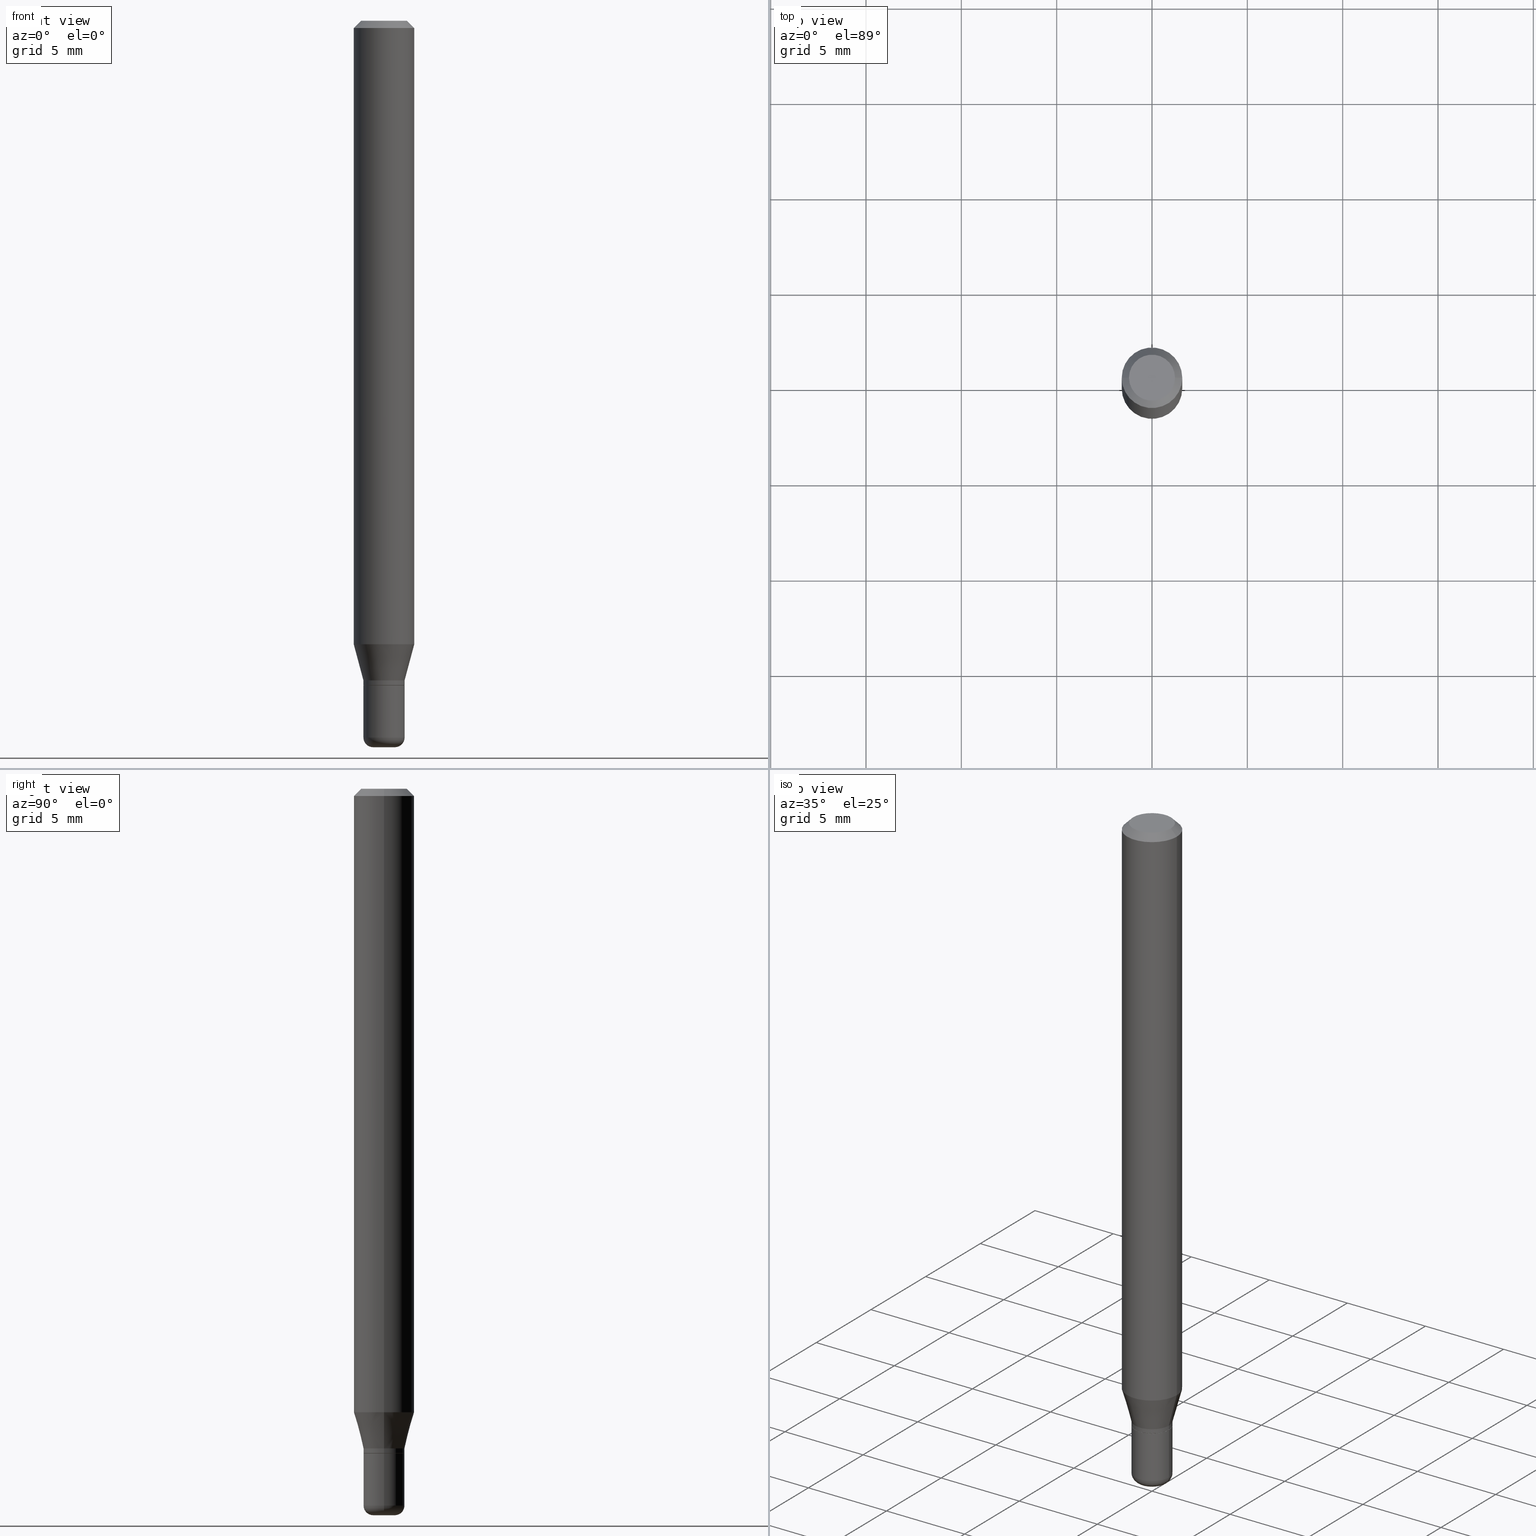
[diagram: canonical four-view strip — front | top / right | iso, engineering-drawing reading convention]
A machine part, canonical four-view strip (front | top / right | iso — engineering-drawing reading convention). The complete STEP part file that produces these views, byte-faithful:
ISO-10303-21;
HEADER;
FILE_DESCRIPTION (( 'STEP AP203' ),
    '1' );
FILE_NAME ('09058.STEP',
    '2024-02-29T21:41:58',
    ( '' ),
    ( '' ),
    'SwSTEP 2.0',
    'SolidWorks 2023',
    '' );
FILE_SCHEMA (( 'CONFIG_CONTROL_DESIGN' ));
ENDSEC;

DATA;
#1 = DIRECTION ( 'NONE',  ( -2.445468806185136597E-29, 3.491481338843145583E-15, 1.000000000000000000 ) ) ;
#2 = VECTOR ( 'NONE', #198, 39.37007874015748143 ) ;
#3 = ORIENTED_EDGE ( 'NONE', *, *, #28, .T. ) ;
#4 = DIRECTION ( 'NONE',  ( -2.445468806185136597E-29, 3.491481338843145583E-15, 1.000000000000000000 ) ) ;
#5 = EDGE_LOOP ( 'NONE', ( #34, #335 ) ) ;
#6 = DIRECTION ( 'NONE',  ( -2.445468806185136877E-29, 3.491481338843145188E-15, 1.000000000000000000 ) ) ;
#7 = FACE_OUTER_BOUND ( 'NONE', #73, .T. ) ;
#8 = CONICAL_SURFACE ( 'NONE', #472, 0.06250000000000000000, 0.7853981633974488341 ) ;
#9 = EDGE_CURVE ( 'NONE', #242, #466, #71, .T. ) ;
#10 = CC_DESIGN_APPROVAL ( #113, ( #226 ) ) ;
#11 = DIRECTION ( 'NONE',  ( -2.445468806185136597E-29, 3.491481338843145583E-15, 1.000000000000000000 ) ) ;
#12 = PERSON_AND_ORGANIZATION_ROLE ( 'design_owner' ) ;
#13 = CARTESIAN_POINT ( 'NONE',  ( 3.316907271900976589E-16, 0.04750000000000000749, -2.925296391183627249E-17 ) ) ;
#14 = COORDINATED_UNIVERSAL_TIME_OFFSET ( 5, 0, .BEHIND. ) ;
#15 = DIRECTION ( 'NONE',  ( -0.2588190451025210725, 5.211531920934548675E-15, 0.9659258262890682012 ) ) ;
#16 = ADVANCED_FACE ( 'NONE', ( #295 ), #46, .T. ) ;
#17 = DIRECTION ( 'NONE',  ( 1.000000000000000000, -6.982962677686265922E-15, 4.876176775795935793E-29 ) ) ;
#18 = VECTOR ( 'NONE', #58, 39.37007874015748143 ) ;
#19 = AXIS2_PLACEMENT_3D ( 'NONE', #251, #172, #40 ) ;
#20 = DIRECTION ( 'NONE',  ( -2.445468806185136597E-29, 3.491481338843145583E-15, 1.000000000000000000 ) ) ;
#21 = CARTESIAN_POINT ( 'NONE',  ( 0.000000000000000000, 0.000000000000000000, 0.000000000000000000 ) ) ;
#22 = ORIENTED_EDGE ( 'NONE', *, *, #462, .F. ) ;
#23 = CYLINDRICAL_SURFACE ( 'NONE', #259, 0.04250000000000002387 ) ;
#24 = EDGE_CURVE ( 'NONE', #487, #242, #215, .T. ) ;
#25 = CONICAL_SURFACE ( 'NONE', #328, 0.06250000000000000000, 0.7853981633974488341 ) ;
#26 = DIRECTION ( 'NONE',  ( -2.445468806185136877E-29, 3.491481338843145188E-15, 1.000000000000000000 ) ) ;
#27 = CARTESIAN_POINT ( 'NONE',  ( 3.330728514024156148E-29, -4.755397583504364259E-15, -1.362000000000000099 ) ) ;
#28 = EDGE_CURVE ( 'NONE', #466, #372, #200, .T. ) ;
#29 = ORIENTED_EDGE ( 'NONE', *, *, #51, .F. ) ;
#30 = CARTESIAN_POINT ( 'NONE',  ( 0.04250000000000003081, -5.464168295289522318E-15, -1.479999999999999982 ) ) ;
#31 = CIRCLE ( 'NONE', #79, 0.06250000000000000000 ) ;
#32 = EDGE_LOOP ( 'NONE', ( #122, #42, #414, #354 ) ) ;
#33 = CARTESIAN_POINT ( 'NONE',  ( 3.668203209277632395E-31, -5.237222008264614861E-17, -0.01499999999999970281 ) ) ;
#34 = ORIENTED_EDGE ( 'NONE', *, *, #514, .T. ) ;
#35 = CARTESIAN_POINT ( 'NONE',  ( 0.02250000000000000264, -5.394338668512659809E-15, -1.500000000000000222 ) ) ;
#36 = ORIENTED_EDGE ( 'NONE', *, *, #173, .F. ) ;
#37 = EDGE_CURVE ( 'NONE', #154, #512, #489, .T. ) ;
#38 = AXIS2_PLACEMENT_3D ( 'NONE', #501, #87, #135 ) ;
#39 = CARTESIAN_POINT ( 'NONE',  ( -0.02249999999999999917, -5.007520265941832589E-15, -1.479999999999999982 ) ) ;
#40 = DIRECTION ( 'NONE',  ( -1.000000000000000000, 6.982962677686265922E-15, -4.876176775795935793E-29 ) ) ;
#41 = AXIS2_PLACEMENT_3D ( 'NONE', #212, #336, #490 ) ;
#42 = ORIENTED_EDGE ( 'NONE', *, *, #233, .T. ) ;
#43 = ORIENTED_EDGE ( 'NONE', *, *, #319, .T. ) ;
#44 = DIRECTION ( 'NONE',  ( 1.000000000000000000, -6.982962677686269866E-15, 0.000000000000000000 ) ) ;
#45 = EDGE_CURVE ( 'NONE', #470, #326, #349, .T. ) ;
#46 = CYLINDRICAL_SURFACE ( 'NONE', #38, 0.06250000000000000000 ) ;
#47 = CIRCLE ( 'NONE', #158, 0.02000000000000003511 ) ;
#48 = APPROVAL_PERSON_ORGANIZATION ( #89, #113, #381 ) ;
#49 = PLANE ( 'NONE',  #294 ) ;
#50 = DIRECTION ( 'NONE',  ( -2.445468806185136597E-29, 3.491481338843145583E-15, 1.000000000000000000 ) ) ;
#51 = EDGE_CURVE ( 'NONE', #156, #68, #240, .T. ) ;
#52 = CARTESIAN_POINT ( 'NONE',  ( 0.06250000000000000000, -4.364351673553916694E-16, 3.047610484872459871E-30 ) ) ;
#53 = CARTESIAN_POINT ( 'NONE',  ( 3.582686580359766038E-29, -5.359686688179453325E-15, -1.500000000000000222 ) ) ;
#54 = FACE_OUTER_BOUND ( 'NONE', #32, .T. ) ;
#55 = CONICAL_SURFACE ( 'NONE', #301, 0.04200000000000001649, 0.7853981633975507526 ) ;
#56 = APPROVAL_PERSON_ORGANIZATION ( #460, #313, #144 ) ;
#57 = CALENDAR_DATE ( 2024, 29, 2 ) ;
#58 = DIRECTION ( 'NONE',  ( -2.445468806185136877E-29, 3.491481338843145188E-15, 1.000000000000000000 ) ) ;
#59 = COORDINATED_UNIVERSAL_TIME_OFFSET ( 5, 0, .BEHIND. ) ;
#60 = CARTESIAN_POINT ( 'NONE',  ( -0.02250000000000000264, -4.971380805754254157E-15, -1.500000000000000222 ) ) ;
#61 = CC_DESIGN_DATE_AND_TIME_ASSIGNMENT ( #136, #302, ( #406 ) ) ;
#62 = ORIENTED_EDGE ( 'NONE', *, *, #238, .T. ) ;
#63 = CARTESIAN_POINT ( 'NONE',  ( 0.04249999999999999611, -5.087088310694462559E-15, -1.372000000000000108 ) ) ;
#64 = CARTESIAN_POINT ( 'NONE',  ( -0.06250000000000000000, -4.050700658649478029E-15, -1.287358983848622795 ) ) ;
#65 = VECTOR ( 'NONE', #230, 39.37007874015748143 ) ;
#66 = ORIENTED_EDGE ( 'NONE', *, *, #296, .F. ) ;
#67 = DIRECTION ( 'NONE',  ( 1.000000000000000000, -6.982962677686267499E-15, 4.876176775795935793E-29 ) ) ;
#68 = VERTEX_POINT ( 'NONE', #255 ) ;
#69 = DIRECTION ( 'NONE',  ( -2.445468806185136877E-29, 3.491481338843145188E-15, 1.000000000000000000 ) ) ;
#70 = DIRECTION ( 'NONE',  ( 1.000000000000000000, -6.982962677686272233E-15, 0.000000000000000000 ) ) ;
#71 = CIRCLE ( 'NONE', #148, 0.02000000000000003511 ) ;
#72 = VECTOR ( 'NONE', #15, 39.37007874015748143 ) ;
#73 = EDGE_LOOP ( 'NONE', ( #288, #43 ) ) ;
#74 = DIRECTION ( 'NONE',  ( -2.445468806185136597E-29, 3.491481338843145583E-15, 1.000000000000000000 ) ) ;
#75 = EDGE_LOOP ( 'NONE', ( #207, #484, #488, #324 ) ) ;
#76 =( CONVERSION_BASED_UNIT ( 'INCH', #449 ) LENGTH_UNIT ( ) NAMED_UNIT ( #96 ) );
#77 = EDGE_CURVE ( 'NONE', #466, #439, #423, .T. ) ;
#78 = ORIENTED_EDGE ( 'NONE', *, *, #153, .F. ) ;
#79 = AXIS2_PLACEMENT_3D ( 'NONE', #305, #140, #245 ) ;
#80 = ORIENTED_EDGE ( 'NONE', *, *, #24, .T. ) ;
#81 = CARTESIAN_POINT ( 'NONE',  ( 0.06250000000000000000, -4.931225035854932314E-15, -1.287358983848622795 ) ) ;
#82 = ORGANIZATION ( 'UNSPECIFIED', 'UNSPECIFIED', '' ) ;
#83 = EDGE_CURVE ( 'NONE', #401, #252, #227, .T. ) ;
#84 = ORIENTED_EDGE ( 'NONE', *, *, #397, .F. ) ;
#85 = CARTESIAN_POINT ( 'NONE',  ( 0.000000000000000000, 0.000000000000000000, 0.000000000000000000 ) ) ;
#86 = DATE_AND_TIME ( #57, #483 ) ;
#87 = DIRECTION ( 'NONE',  ( -2.445468806185136597E-29, 3.491481338843145583E-15, 1.000000000000000000 ) ) ;
#88 = CARTESIAN_POINT ( 'NONE',  ( 0.04250000000000002387, -2.967759138016665521E-16, 2.072375129713273903E-30 ) ) ;
#89 = PERSON_AND_ORGANIZATION ( #99, #82 ) ;
#90 = CALENDAR_DATE ( 2024, 29, 2 ) ;
#91 = DIRECTION ( 'NONE',  ( -0.7071067811866199593, 7.493145998870616062E-15, 0.7071067811864750752 ) ) ;
#92 = CIRCLE ( 'NONE', #454, 0.06250000000000000000 ) ;
#93 = DIRECTION ( 'NONE',  ( 2.438088387897960049E-29, -3.491481338843145188E-15, -1.000000000000000000 ) ) ;
#94 = DIRECTION ( 'NONE',  ( 1.000000000000000000, 0.000000000000000000, 0.000000000000000000 ) ) ;
#95 = CARTESIAN_POINT ( 'NONE',  ( 3.148196237364002379E-29, -4.494789868499541434E-15, -1.287358983848622795 ) ) ;
#96 = DIMENSIONAL_EXPONENTS ( 1.000000000000000000, 0.000000000000000000, 0.000000000000000000, 0.000000000000000000, 0.000000000000000000, 0.000000000000000000, 0.000000000000000000 ) ;
#97 = CONICAL_SURFACE ( 'NONE', #247, 0.04200000000000001649, 0.7853981633975507526 ) ;
#98 = CC_DESIGN_APPROVAL ( #256, ( #406 ) ) ;
#99 = PERSON ( 'UNSPECIFIED', 'UNSPECIFIED', 'UNSPECIFIED', ('UNSPECIFIED'), ('UNSPECIFIED'), ('UNSPECIFIED') ) ;
#100 = ADVANCED_FACE ( 'NONE', ( #380 ), #49, .F. ) ;
#101 = ORIENTED_EDGE ( 'NONE', *, *, #376, .F. ) ;
#102 = CARTESIAN_POINT ( 'NONE',  ( -0.04250000000000001693, -4.486585993525331952E-15, -1.371500000000000163 ) ) ;
#103 = MANIFOLD_SOLID_BREP ( 'Body-Move/Copy2[1]', #308 ) ;
#104 = ORIENTED_EDGE ( 'NONE', *, *, #238, .F. ) ;
#105 = DIRECTION ( 'NONE',  ( -2.445468806185136597E-29, 3.491481338843145583E-15, 1.000000000000000000 ) ) ;
#106 = EDGE_LOOP ( 'NONE', ( #250, #3, #317, #374 ) ) ;
#107 = DIRECTION ( 'NONE',  ( 2.445468806185136597E-29, -3.491481338843145583E-15, -1.000000000000000000 ) ) ;
#108 = EDGE_CURVE ( 'NONE', #326, #252, #31, .T. ) ;
#109 = CIRCLE ( 'NONE', #312, 0.06250000000000000000 ) ;
#110 = VECTOR ( 'NONE', #6, 39.37007874015748143 ) ;
#111 = EDGE_LOOP ( 'NONE', ( #193, #236, #169, #246 ) ) ;
#112 = CARTESIAN_POINT ( 'NONE',  ( 0.04200000000000001649, -5.083596829355619552E-15, -1.372000000000000108 ) ) ;
#113 = APPROVAL ( #254, 'UNSPECIFIED' ) ;
#114 = ORIENTED_EDGE ( 'NONE', *, *, #9, .T. ) ;
#115 = LINE ( 'NONE', #243, #166 ) ;
#116 = UNCERTAINTY_MEASURE_WITH_UNIT (LENGTH_MEASURE( 1.000000000000000082E-05 ), #76, 'distance_accuracy_value', 'NONE');
#117 = ORIENTED_EDGE ( 'NONE', *, *, #458, .T. ) ;
#118 = CARTESIAN_POINT ( 'NONE',  ( 0.02249999999999999917, -5.324509041735796511E-15, -1.479999999999999982 ) ) ;
#119 = VECTOR ( 'NONE', #492, 39.37007874015748143 ) ;
#120 = ADVANCED_FACE ( 'NONE', ( #54 ), #8, .T. ) ;
#121 = AXIS2_PLACEMENT_3D ( 'NONE', #416, #165, #44 ) ;
#122 = ORIENTED_EDGE ( 'NONE', *, *, #147, .F. ) ;
#123 = DIRECTION ( 'NONE',  ( 1.000000000000000000, -6.982962677686266711E-15, 4.876176775795935793E-29 ) ) ;
#124 = ORIENTED_EDGE ( 'NONE', *, *, #376, .T. ) ;
#125 = CARTESIAN_POINT ( 'NONE',  ( 0.04250000000000001693, -5.085342570025041844E-15, -1.371500000000000163 ) ) ;
#126 = EDGE_LOOP ( 'NONE', ( #270, #117, #124, #84 ) ) ;
#127 = ADVANCED_FACE ( 'NONE', ( #190 ), #55, .T. ) ;
#128 = CIRCLE ( 'NONE', #232, 0.04250000000000001693 ) ;
#129 = VERTEX_POINT ( 'NONE', #63 ) ;
#130 = DIRECTION ( 'NONE',  ( 0.000000000000000000, 0.000000000000000000, 1.000000000000000000 ) ) ;
#131 = CARTESIAN_POINT ( 'NONE',  ( -0.04250000000000003081, -4.676871726492283729E-15, -1.479999999999999982 ) ) ;
#132 = CARTESIAN_POINT ( 'NONE',  ( 3.619293833154002365E-29, -5.167392381487854879E-15, -1.479999999999999982 ) ) ;
#133 = APPROVAL_ROLE ( '' ) ;
#134 = DIRECTION ( 'NONE',  ( 1.000000000000000000, -6.982962677686260400E-15, 0.000000000000000000 ) ) ;
#135 = DIRECTION ( 'NONE',  ( 1.000000000000000000, -6.982962677686266711E-15, 4.876176775795935793E-29 ) ) ;
#136 = DATE_AND_TIME ( #90, #167 ) ;
#137 = ADVANCED_FACE ( 'NONE', ( #179 ), #420, .T. ) ;
#138 = LINE ( 'NONE', #187, #72 ) ;
#139 = AXIS2_PLACEMENT_3D ( 'NONE', #506, #74, #314 ) ;
#140 = DIRECTION ( 'NONE',  ( -2.445468806185136597E-29, 3.491481338843145583E-15, 1.000000000000000000 ) ) ;
#141 = APPROVAL_DATE_TIME ( #498, #313 ) ;
#142 = DIRECTION ( 'NONE',  ( 1.000000000000000000, -6.982962677686260400E-15, 0.000000000000000000 ) ) ;
#143 = DATE_AND_TIME ( #417, #421 ) ;
#144 = APPROVAL_ROLE ( '' ) ;
#145 = CARTESIAN_POINT ( 'NONE',  ( -0.06250000000000000000, 4.440892098500626162E-16, -3.074334431409316114E-30 ) ) ;
#146 = PRODUCT ( '09058', '09058', '', ( #502 ) ) ;
#147 = EDGE_CURVE ( 'NONE', #368, #401, #217, .T. ) ;
#148 = AXIS2_PLACEMENT_3D ( 'NONE', #39, #452, #210 ) ;
#149 = AXIS2_PLACEMENT_3D ( 'NONE', #307, #463, #269 ) ;
#150 = ORIENTED_EDGE ( 'NONE', *, *, #330, .F. ) ;
#151 = CARTESIAN_POINT ( 'NONE',  ( 3.148196237364002379E-29, -4.494789868499541434E-15, -1.287358983848622795 ) ) ;
#152 = ADVANCED_BREP_SHAPE_REPRESENTATION ( '09058', ( #103, #283, #241 ), #412 ) ;
#153 = EDGE_CURVE ( 'NONE', #68, #156, #176, .T. ) ;
#154 = VERTEX_POINT ( 'NONE', #102 ) ;
#155 = FACE_OUTER_BOUND ( 'NONE', #437, .T. ) ;
#156 = VERTEX_POINT ( 'NONE', #183 ) ;
#157 = DIRECTION ( 'NONE',  ( 1.000000000000000000, -6.982962677686276177E-15, 0.000000000000000000 ) ) ;
#158 = AXIS2_PLACEMENT_3D ( 'NONE', #118, #322, #70 ) ;
#159 = CIRCLE ( 'NONE', #121, 0.04250000000000003081 ) ;
#160 = CARTESIAN_POINT ( 'NONE',  ( 0.04250000000000001693, -2.967759138016664535E-16, 2.072375129713273553E-30 ) ) ;
#161 = EDGE_LOOP ( 'NONE', ( #292, #518, #66, #276 ) ) ;
#162 = LINE ( 'NONE', #201, #2 ) ;
#163 = CC_DESIGN_PERSON_AND_ORGANIZATION_ASSIGNMENT ( #189, #299, ( #406 ) ) ;
#164 = EDGE_LOOP ( 'NONE', ( #476, #104 ) ) ;
#165 = DIRECTION ( 'NONE',  ( -2.445468806185136597E-29, 3.491481338843145583E-15, 1.000000000000000000 ) ) ;
#166 = VECTOR ( 'NONE', #26, 39.37007874015748143 ) ;
#167 = LOCAL_TIME ( 16, 41, 58.00000000000000000, #59 ) ;
#168 = APPLICATION_CONTEXT ( 'configuration controlled 3d designs of mechanical parts and assemblies' ) ;
#169 = ORIENTED_EDGE ( 'NONE', *, *, #491, .T. ) ;
#170 = DIRECTION ( 'NONE',  ( 1.000000000000000000, -6.982962677686269866E-15, 0.000000000000000000 ) ) ;
#171 = ORIENTED_EDGE ( 'NONE', *, *, #208, .T. ) ;
#172 = DIRECTION ( 'NONE',  ( 2.438088387897960049E-29, -3.491481338843145188E-15, -1.000000000000000000 ) ) ;
#173 = EDGE_CURVE ( 'NONE', #470, #334, #309, .T. ) ;
#174 = ORIENTED_EDGE ( 'NONE', *, *, #397, .T. ) ;
#175 = DIRECTION ( 'NONE',  ( 1.000000000000000000, -6.982962677686266711E-15, 4.852736867747365086E-29 ) ) ;
#176 = CIRCLE ( 'NONE', #496, 0.04200000000000001649 ) ;
#177 = DIRECTION ( 'NONE',  ( -2.438088387897960049E-29, 3.491481338843145188E-15, 1.000000000000000000 ) ) ;
#178 = CIRCLE ( 'NONE', #465, 0.04250000000000003081 ) ;
#179 = FACE_OUTER_BOUND ( 'NONE', #279, .T. ) ;
#180 = ADVANCED_FACE ( 'NONE', ( #300 ), #97, .T. ) ;
#181 = CARTESIAN_POINT ( 'NONE',  ( 3.355183202086007133E-29, -4.790312396892795908E-15, -1.372000000000000108 ) ) ;
#182 = CARTESIAN_POINT ( 'NONE',  ( -0.06250000000000000000, 3.840629472727455270E-16, -0.01499999999999970281 ) ) ;
#183 = CARTESIAN_POINT ( 'NONE',  ( -0.04200000000000001649, -4.489235220699443153E-15, -1.372000000000000108 ) ) ;
#184 = AXIS2_PLACEMENT_3D ( 'NONE', #53, #385, #17 ) ;
#185 = AXIS2_PLACEMENT_3D ( 'NONE', #405, #517, #175 ) ;
#186 = EDGE_CURVE ( 'NONE', #156, #154, #425, .T. ) ;
#187 = CARTESIAN_POINT ( 'NONE',  ( -0.04250000000000003081, -4.453416920806321806E-15, -1.362000000000000099 ) ) ;
#188 = PERSON_AND_ORGANIZATION_ROLE ( 'design_supplier' ) ;
#189 = PERSON_AND_ORGANIZATION ( #99, #82 ) ;
#190 = FACE_OUTER_BOUND ( 'NONE', #161, .T. ) ;
#191 = CARTESIAN_POINT ( 'NONE',  ( 3.619293833154002365E-29, -5.167392381487854879E-15, -1.479999999999999982 ) ) ;
#192 = APPROVAL_PERSON_ORGANIZATION ( #424, #256, #133 ) ;
#193 = ORIENTED_EDGE ( 'NONE', *, *, #264, .F. ) ;
#194 = FACE_OUTER_BOUND ( 'NONE', #244, .T. ) ;
#195 = EDGE_CURVE ( 'NONE', #334, #252, #260, .T. ) ;
#196 = DIRECTION ( 'NONE',  ( -2.445468806185136597E-29, 3.491481338843145583E-15, 1.000000000000000000 ) ) ;
#197 = ORIENTED_EDGE ( 'NONE', *, *, #486, .T. ) ;
#198 = DIRECTION ( 'NONE',  ( 0.2588190451025210725, 1.565188264969624137E-15, 0.9659258262890682012 ) ) ;
#199 = CLOSED_SHELL ( 'NONE', ( #391, #127, #120, #342, #291, #413, #16, #352, #100, #478, #180, #202 ) ) ;
#200 = CIRCLE ( 'NONE', #430, 0.04250000000000003081 ) ;
#201 = CARTESIAN_POINT ( 'NONE',  ( 0.04250000000000003081, -5.052173497306030910E-15, -1.362000000000000099 ) ) ;
#202 = ADVANCED_FACE ( 'NONE', ( #394 ), #499, .T. ) ;
#203 = PERSON_AND_ORGANIZATION ( #99, #82 ) ;
#204 = ORIENTED_EDGE ( 'NONE', *, *, #37, .F. ) ;
#205 = DIRECTION ( 'NONE',  ( -2.445468806185136597E-29, 3.491481338843145583E-15, 1.000000000000000000 ) ) ;
#206 = PRODUCT_DEFINITION_SHAPE ( 'NONE', 'NONE',  #406 ) ;
#207 = ORIENTED_EDGE ( 'NONE', *, *, #173, .T. ) ;
#208 = EDGE_CURVE ( 'NONE', #407, #334, #138, .T. ) ;
#209 = AXIS2_PLACEMENT_3D ( 'NONE', #191, #438, #360 ) ;
#210 = DIRECTION ( 'NONE',  ( -1.000000000000000000, 7.105427357601009747E-15, 0.000000000000000000 ) ) ;
#211 = ORIENTED_EDGE ( 'NONE', *, *, #491, .F. ) ;
#212 = CARTESIAN_POINT ( 'NONE',  ( 3.619293833154002365E-29, -5.167392381487854879E-15, -1.479999999999999982 ) ) ;
#213 = ORIENTED_EDGE ( 'NONE', *, *, #186, .F. ) ;
#214 = FACE_OUTER_BOUND ( 'NONE', #106, .T. ) ;
#215 = CIRCLE ( 'NONE', #395, 0.02250000000000000264 ) ;
#216 = DATE_TIME_ROLE ( 'classification_date' ) ;
#217 = CIRCLE ( 'NONE', #403, 0.04750000000000000749 ) ;
#218 = DIRECTION ( 'NONE',  ( -0.7071067811865479058, 2.468850131082261005E-15, -0.7071067811865471286 ) ) ;
#219 = CC_DESIGN_PERSON_AND_ORGANIZATION_ASSIGNMENT ( #203, #263, ( #329 ) ) ;
#220 = DIRECTION ( 'NONE',  ( 1.000000000000000000, -6.982962677686267499E-15, 4.876176775795935793E-29 ) ) ;
#221 = COORDINATED_UNIVERSAL_TIME_OFFSET ( 5, 0, .BEHIND. ) ;
#222 = ADVANCED_FACE ( 'NONE', ( #262 ), #350, .F. ) ;
#223 = DIRECTION ( 'NONE',  ( 1.000000000000000000, -6.982962677686272233E-15, 0.000000000000000000 ) ) ;
#224 = AXIS2_PLACEMENT_3D ( 'NONE', #343, #20, #223 ) ;
#225 = DIRECTION ( 'NONE',  ( -2.445468806185136597E-29, 3.491481338843145583E-15, 1.000000000000000000 ) ) ;
#226 = SECURITY_CLASSIFICATION ( '', '', #323 ) ;
#227 = LINE ( 'NONE', #182, #268 ) ;
#228 = CALENDAR_DATE ( 2024, 29, 2 ) ;
#229 = APPLICATION_CONTEXT ( 'configuration controlled 3d designs of mechanical parts and assemblies' ) ;
#230 = DIRECTION ( 'NONE',  ( -2.445468806185136877E-29, 3.491481338843145188E-15, 1.000000000000000000 ) ) ;
#231 = EDGE_LOOP ( 'NONE', ( #315, #450, #399, #273 ) ) ;
#232 = AXIS2_PLACEMENT_3D ( 'NONE', #442, #282, #480 ) ;
#233 = EDGE_CURVE ( 'NONE', #368, #326, #351, .T. ) ;
#234 = ORIENTED_EDGE ( 'NONE', *, *, #45, .T. ) ;
#235 = CARTESIAN_POINT ( 'NONE',  ( -0.04250000000000003081, -4.252058789727899918E-15, -1.362000000000000099 ) ) ;
#236 = ORIENTED_EDGE ( 'NONE', *, *, #37, .T. ) ;
#237 = LINE ( 'NONE', #160, #447 ) ;
#238 = EDGE_CURVE ( 'NONE', #242, #487, #278, .T. ) ;
#239 = CARTESIAN_POINT ( 'NONE',  ( 3.668203209277632395E-31, -5.237222008264614861E-17, -0.01499999999999970281 ) ) ;
#240 = CIRCLE ( 'NONE', #511, 0.04200000000000001649 ) ;
#241 = AXIS2_PLACEMENT_3D ( 'NONE', #453, #130, #94 ) ;
#242 = VERTEX_POINT ( 'NONE', #60 ) ;
#243 = CARTESIAN_POINT ( 'NONE',  ( -0.04250000000000002387, 3.019806626980427486E-16, -2.090547413358336260E-30 ) ) ;
#244 = EDGE_LOOP ( 'NONE', ( #441, #62, #455, #436 ) ) ;
#245 = DIRECTION ( 'NONE',  ( 1.000000000000000000, -6.982962677686266711E-15, 0.000000000000000000 ) ) ;
#246 = ORIENTED_EDGE ( 'NONE', *, *, #458, .F. ) ;
#247 = AXIS2_PLACEMENT_3D ( 'NONE', #382, #265, #429 ) ;
#248 = TOROIDAL_SURFACE ( 'NONE', #209, 0.02249999999999999917, 0.02000000000000003511 ) ;
#249 = CONICAL_SURFACE ( 'NONE', #371, 0.04250000000000003081, 0.2617993877991497409 ) ;
#250 = ORIENTED_EDGE ( 'NONE', *, *, #77, .F. ) ;
#251 = CARTESIAN_POINT ( 'NONE',  ( 2.967759138016998322E-16, 0.04249999999999520828, -1.372000000000000330 ) ) ;
#252 = VERTEX_POINT ( 'NONE', #510 ) ;
#253 = DIRECTION ( 'NONE',  ( 1.000000000000000000, -6.982962677686266711E-15, 4.876176775795935793E-29 ) ) ;
#254 = APPROVAL_STATUS ( 'not_yet_approved' ) ;
#255 = CARTESIAN_POINT ( 'NONE',  ( 0.04200000000000001649, -5.083596829355619552E-15, -1.372000000000000108 ) ) ;
#256 = APPROVAL ( #267, 'UNSPECIFIED' ) ;
#257 = VECTOR ( 'NONE', #364, 39.37007874015748143 ) ;
#258 = DIRECTION ( 'NONE',  ( 1.000000000000000000, -6.982962677686260400E-15, 0.000000000000000000 ) ) ;
#259 = AXIS2_PLACEMENT_3D ( 'NONE', #277, #105, #67 ) ;
#260 = LINE ( 'NONE', #145, #65 ) ;
#261 = APPROVAL_STATUS ( 'not_yet_approved' ) ;
#262 = FACE_OUTER_BOUND ( 'NONE', #164, .T. ) ;
#263 = PERSON_AND_ORGANIZATION_ROLE ( 'creator' ) ;
#264 = EDGE_CURVE ( 'NONE', #154, #407, #115, .T. ) ;
#265 = DIRECTION ( 'NONE',  ( -2.445468806185136597E-29, 3.491481338843145583E-15, 1.000000000000000000 ) ) ;
#266 = DIRECTION ( 'NONE',  ( -2.445468806185136597E-29, 3.491481338843145583E-15, 1.000000000000000000 ) ) ;
#267 = APPROVAL_STATUS ( 'not_yet_approved' ) ;
#268 = VECTOR ( 'NONE', #218, 39.37007874015748143 ) ;
#269 = DIRECTION ( 'NONE',  ( 1.000000000000000000, -6.982962677686267499E-15, 0.000000000000000000 ) ) ;
#270 = ORIENTED_EDGE ( 'NONE', *, *, #208, .F. ) ;
#271 = DIRECTION ( 'NONE',  ( 1.000000000000000000, -6.982962677686262766E-15, 0.000000000000000000 ) ) ;
#272 = CC_DESIGN_PERSON_AND_ORGANIZATION_ASSIGNMENT ( #333, #516, ( #226 ) ) ;
#273 = ORIENTED_EDGE ( 'NONE', *, *, #337, .T. ) ;
#274 = CARTESIAN_POINT ( 'NONE',  ( 0.000000000000000000, 0.000000000000000000, 0.000000000000000000 ) ) ;
#275 = DESIGN_CONTEXT ( 'detailed design', #229, 'design' ) ;
#276 = ORIENTED_EDGE ( 'NONE', *, *, #356, .F. ) ;
#277 = CARTESIAN_POINT ( 'NONE',  ( 0.000000000000000000, 0.000000000000000000, 0.000000000000000000 ) ) ;
#278 = CIRCLE ( 'NONE', #149, 0.02250000000000000264 ) ;
#279 = EDGE_LOOP ( 'NONE', ( #80, #114, #22, #150 ) ) ;
#280 = DIRECTION ( 'NONE',  ( 1.000000000000000000, -6.982962677686269866E-15, 0.000000000000000000 ) ) ;
#281 = ADVANCED_FACE ( 'NONE', ( #194 ), #248, .T. ) ;
#282 = DIRECTION ( 'NONE',  ( -2.445468806185136597E-29, 3.491481338843145583E-15, 1.000000000000000000 ) ) ;
#283 = MANIFOLD_SOLID_BREP ( 'Body-Move/Copy2[2]', #199 ) ;
#284 = EDGE_LOOP ( 'NONE', ( #78, #29 ) ) ;
#285 = DIRECTION ( 'NONE',  ( -1.000000000000000000, 6.982962677686266711E-15, 0.000000000000000000 ) ) ;
#286 = AXIS2_PLACEMENT_3D ( 'NONE', #355, #396, #157 ) ;
#287 = AXIS2_PLACEMENT_3D ( 'NONE', #451, #205, #253 ) ;
#288 = ORIENTED_EDGE ( 'NONE', *, *, #383, .T. ) ;
#289 = ORIENTED_EDGE ( 'NONE', *, *, #337, .F. ) ;
#290 =( NAMED_UNIT ( * ) SI_UNIT ( $, .STERADIAN. ) SOLID_ANGLE_UNIT ( ) );
#291 = ADVANCED_FACE ( 'NONE', ( #155 ), #411, .T. ) ;
#292 = ORIENTED_EDGE ( 'NONE', *, *, #153, .T. ) ;
#293 = APPLICATION_PROTOCOL_DEFINITION ( 'international standard', 'config_control_design', 1994, #168 ) ;
#294 = AXIS2_PLACEMENT_3D ( 'NONE', #13, #93, #497 ) ;
#295 = FACE_OUTER_BOUND ( 'NONE', #359, .T. ) ;
#296 = EDGE_CURVE ( 'NONE', #512, #154, #128, .T. ) ;
#297 = FACE_OUTER_BOUND ( 'NONE', #284, .T. ) ;
#298 = DIRECTION ( 'NONE',  ( -2.445468806185136597E-29, 3.491481338843145583E-15, 1.000000000000000000 ) ) ;
#299 = PERSON_AND_ORGANIZATION_ROLE ( 'creator' ) ;
#300 = FACE_OUTER_BOUND ( 'NONE', #365, .T. ) ;
#301 = AXIS2_PLACEMENT_3D ( 'NONE', #311, #494, #142 ) ;
#302 = DATE_TIME_ROLE ( 'creation_date' ) ;
#303 = EDGE_CURVE ( 'NONE', #372, #129, #237, .T. ) ;
#304 = CARTESIAN_POINT ( 'NONE',  ( -6.680649051745406845E-45, 9.538196290434862081E-31, 2.731847993664263218E-16 ) ) ;
#305 = CARTESIAN_POINT ( 'NONE',  ( 3.668203209277632395E-31, -5.237222008264614861E-17, -0.01499999999999970281 ) ) ;
#306 = DATE_AND_TIME ( #228, #475 ) ;
#307 = CARTESIAN_POINT ( 'NONE',  ( 3.668203209277704895E-29, -5.237222008264718177E-15, -1.500000000000000222 ) ) ;
#308 = CLOSED_SHELL ( 'NONE', ( #137, #432, #426, #469, #281, #222 ) ) ;
#309 = CIRCLE ( 'NONE', #464, 0.06250000000000000000 ) ;
#310 = ORIENTED_EDGE ( 'NONE', *, *, #264, .T. ) ;
#311 = CARTESIAN_POINT ( 'NONE',  ( 3.355183202086007133E-29, -4.790312396892795908E-15, -1.372000000000000108 ) ) ;
#312 = AXIS2_PLACEMENT_3D ( 'NONE', #151, #468, #398 ) ;
#313 = APPROVAL ( #261, 'UNSPECIFIED' ) ;
#314 = DIRECTION ( 'NONE',  ( 1.000000000000000000, -6.982962677686276177E-15, 0.000000000000000000 ) ) ;
#315 = ORIENTED_EDGE ( 'NONE', *, *, #233, .F. ) ;
#316 = FACE_OUTER_BOUND ( 'NONE', #75, .T. ) ;
#317 = ORIENTED_EDGE ( 'NONE', *, *, #303, .T. ) ;
#318 = DIRECTION ( 'NONE',  ( 1.000000000000000000, -6.982962677686266711E-15, 0.000000000000000000 ) ) ;
#319 = EDGE_CURVE ( 'NONE', #439, #129, #505, .T. ) ;
#320 = CC_DESIGN_SECURITY_CLASSIFICATION ( #226, ( #329 ) ) ;
#321 = CIRCLE ( 'NONE', #185, 0.04750000000000000749 ) ;
#322 = DIRECTION ( 'NONE',  ( -6.982962677686266711E-15, -1.000000000000000000, 3.491481338843145583E-15 ) ) ;
#323 = SECURITY_CLASSIFICATION_LEVEL ( 'unclassified' ) ;
#324 = ORIENTED_EDGE ( 'NONE', *, *, #45, .F. ) ;
#325 = CARTESIAN_POINT ( 'NONE',  ( 3.330728514024156148E-29, -4.755397583504364259E-15, -1.362000000000000099 ) ) ;
#326 = VERTEX_POINT ( 'NONE', #509 ) ;
#327 =( LENGTH_UNIT ( ) NAMED_UNIT ( * ) SI_UNIT ( $, .METRE. ) );
#328 = AXIS2_PLACEMENT_3D ( 'NONE', #33, #107, #285 ) ;
#329 = PRODUCT_DEFINITION_FORMATION_WITH_SPECIFIED_SOURCE ( 'ANY', '', #146, .NOT_KNOWN. ) ;
#330 = EDGE_CURVE ( 'NONE', #487, #372, #47, .T. ) ;
#331 = ORIENTED_EDGE ( 'NONE', *, *, #462, .T. ) ;
#332 = PLANE ( 'NONE',  #339 ) ;
#333 = PERSON_AND_ORGANIZATION ( #99, #82 ) ;
#334 = VERTEX_POINT ( 'NONE', #64 ) ;
#335 = ORIENTED_EDGE ( 'NONE', *, *, #147, .T. ) ;
#336 = DIRECTION ( 'NONE',  ( -2.445468806185136597E-29, 3.491481338843145583E-15, 1.000000000000000000 ) ) ;
#337 = EDGE_CURVE ( 'NONE', #252, #326, #92, .T. ) ;
#338 = AXIS2_PLACEMENT_3D ( 'NONE', #435, #467, #495 ) ;
#339 = AXIS2_PLACEMENT_3D ( 'NONE', #410, #177, #375 ) ;
#340 = CYLINDRICAL_SURFACE ( 'NONE', #347, 0.04250000000000001693 ) ;
#341 = COORDINATED_UNIVERSAL_TIME_OFFSET ( 5, 0, .BEHIND. ) ;
#342 = ADVANCED_FACE ( 'NONE', ( #316 ), #474, .T. ) ;
#343 = CARTESIAN_POINT ( 'NONE',  ( 3.353960467682915452E-29, -4.788566656223375193E-15, -1.371500000000000163 ) ) ;
#344 = DIRECTION ( 'NONE',  ( -2.445468806185136597E-29, 3.491481338843145583E-15, 1.000000000000000000 ) ) ;
#345 = VECTOR ( 'NONE', #91, 39.37007874015748143 ) ;
#346 = CALENDAR_DATE ( 2024, 29, 2 ) ;
#347 = AXIS2_PLACEMENT_3D ( 'NONE', #85, #1, #123 ) ;
#348 = CARTESIAN_POINT ( 'NONE',  ( 0.06250000000000000000, -4.811533449433669144E-16, -0.01499999999999970281 ) ) ;
#349 = LINE ( 'NONE', #52, #119 ) ;
#350 = PLANE ( 'NONE',  #184 ) ;
#351 = LINE ( 'NONE', #348, #379 ) ;
#352 = ADVANCED_FACE ( 'NONE', ( #402 ), #25, .T. ) ;
#353 = FACE_OUTER_BOUND ( 'NONE', #377, .T. ) ;
#354 = ORIENTED_EDGE ( 'NONE', *, *, #83, .F. ) ;
#355 = CARTESIAN_POINT ( 'NONE',  ( 3.355183202086007133E-29, -4.790312396892795908E-15, -1.372000000000000108 ) ) ;
#356 = EDGE_CURVE ( 'NONE', #68, #512, #446, .T. ) ;
#357 = FACE_OUTER_BOUND ( 'NONE', #126, .T. ) ;
#358 = PRODUCT_RELATED_PRODUCT_CATEGORY ( 'detail', '', ( #146 ) ) ;
#359 = EDGE_LOOP ( 'NONE', ( #481, #174, #234, #289 ) ) ;
#360 = DIRECTION ( 'NONE',  ( 1.000000000000000000, -6.982962677686269866E-15, 4.883557194083114022E-29 ) ) ;
#361 = AXIS2_PLACEMENT_3D ( 'NONE', #21, #50, #220 ) ;
#362 = CIRCLE ( 'NONE', #41, 0.04250000000000003081 ) ;
#363 = PERSON_AND_ORGANIZATION ( #99, #82 ) ;
#364 = DIRECTION ( 'NONE',  ( 0.7071067811866199593, -2.468850131083015945E-15, 0.7071067811864750752 ) ) ;
#365 = EDGE_LOOP ( 'NONE', ( #213, #404, #409, #204 ) ) ;
#366 = LINE ( 'NONE', #88, #110 ) ;
#367 = CC_DESIGN_PERSON_AND_ORGANIZATION_ASSIGNMENT ( #363, #188, ( #329 ) ) ;
#368 = VERTEX_POINT ( 'NONE', #515 ) ;
#369 = FACE_OUTER_BOUND ( 'NONE', #473, .T. ) ;
#370 = CIRCLE ( 'NONE', #139, 0.04249999999999999611 ) ;
#371 = AXIS2_PLACEMENT_3D ( 'NONE', #27, #196, #280 ) ;
#372 = VERTEX_POINT ( 'NONE', #30 ) ;
#373 = CARTESIAN_POINT ( 'NONE',  ( -0.04249999999999999611, -4.676871726492283729E-15, -1.372000000000000108 ) ) ;
#374 = ORIENTED_EDGE ( 'NONE', *, *, #319, .F. ) ;
#375 = DIRECTION ( 'NONE',  ( 1.000000000000000000, -6.982962677686265922E-15, 4.876176775795935793E-29 ) ) ;
#376 = EDGE_CURVE ( 'NONE', #479, #470, #162, .T. ) ;
#377 = EDGE_LOOP ( 'NONE', ( #415, #310, #393, #211 ) ) ;
#378 = CARTESIAN_POINT ( 'NONE',  ( 3.330728514024156148E-29, -4.755397583504364259E-15, -1.362000000000000099 ) ) ;
#379 = VECTOR ( 'NONE', #503, 39.37007874015748143 ) ;
#380 = FACE_OUTER_BOUND ( 'NONE', #5, .T. ) ;
#381 = APPROVAL_ROLE ( '' ) ;
#382 = CARTESIAN_POINT ( 'NONE',  ( 3.355183202086007133E-29, -4.790312396892795908E-15, -1.372000000000000108 ) ) ;
#383 = EDGE_CURVE ( 'NONE', #129, #439, #370, .T. ) ;
#384 = CARTESIAN_POINT ( 'NONE',  ( 3.668203209277704895E-29, -5.237222008264718177E-15, -1.500000000000000222 ) ) ;
#385 = DIRECTION ( 'NONE',  ( -2.438088387897960049E-29, 3.491481338843145188E-15, 1.000000000000000000 ) ) ;
#386 = AXIS2_PLACEMENT_3D ( 'NONE', #325, #477, #513 ) ;
#387 = CC_DESIGN_APPROVAL ( #313, ( #329 ) ) ;
#388 = CARTESIAN_POINT ( 'NONE',  ( 3.355183202086007133E-29, -4.790312396892795908E-15, -1.372000000000000108 ) ) ;
#389 = DIRECTION ( 'NONE',  ( -2.445468806185136597E-29, 3.491481338843145583E-15, 1.000000000000000000 ) ) ;
#390 = APPROVAL_DATE_TIME ( #306, #256 ) ;
#391 = ADVANCED_FACE ( 'NONE', ( #353 ), #23, .T. ) ;
#392 = DIRECTION ( 'NONE',  ( 2.445468806185136597E-29, -3.491481338843145583E-15, -1.000000000000000000 ) ) ;
#393 = ORIENTED_EDGE ( 'NONE', *, *, #486, .F. ) ;
#394 = FACE_OUTER_BOUND ( 'NONE', #111, .T. ) ;
#395 = AXIS2_PLACEMENT_3D ( 'NONE', #384, #11, #427 ) ;
#396 = DIRECTION ( 'NONE',  ( -2.445468806185136597E-29, 3.491481338843145583E-15, 1.000000000000000000 ) ) ;
#397 = EDGE_CURVE ( 'NONE', #334, #470, #109, .T. ) ;
#398 = DIRECTION ( 'NONE',  ( 1.000000000000000000, -6.982962677686262766E-15, 0.000000000000000000 ) ) ;
#399 = ORIENTED_EDGE ( 'NONE', *, *, #83, .T. ) ;
#400 = DIRECTION ( 'NONE',  ( -2.445468806185136597E-29, 3.491481338843145583E-15, 1.000000000000000000 ) ) ;
#401 = VERTEX_POINT ( 'NONE', #440 ) ;
#402 = FACE_OUTER_BOUND ( 'NONE', #231, .T. ) ;
#403 = AXIS2_PLACEMENT_3D ( 'NONE', #304, #344, #461 ) ;
#404 = ORIENTED_EDGE ( 'NONE', *, *, #51, .T. ) ;
#405 = CARTESIAN_POINT ( 'NONE',  ( -6.680649051745406845E-45, 9.538196290434862081E-31, 2.731847993664263218E-16 ) ) ;
#406 = PRODUCT_DEFINITION ( 'UNKNOWN', '', #329, #275 ) ;
#407 = VERTEX_POINT ( 'NONE', #235 ) ;
#408 =( NAMED_UNIT ( * ) PLANE_ANGLE_UNIT ( ) SI_UNIT ( $, .RADIAN. ) );
#409 = ORIENTED_EDGE ( 'NONE', *, *, #356, .T. ) ;
#410 = CARTESIAN_POINT ( 'NONE',  ( 3.355183202086007133E-29, -4.790312396892795908E-15, -1.372000000000000108 ) ) ;
#411 = CONICAL_SURFACE ( 'NONE', #386, 0.04250000000000003081, 0.2617993877991497409 ) ;
#412 =( GEOMETRIC_REPRESENTATION_CONTEXT ( 3 ) GLOBAL_UNCERTAINTY_ASSIGNED_CONTEXT ( ( #116 ) ) GLOBAL_UNIT_ASSIGNED_CONTEXT ( ( #76, #408, #290 ) ) REPRESENTATION_CONTEXT ( 'NONE', 'WORKASPACE' ) );
#413 = ADVANCED_FACE ( 'NONE', ( #357 ), #249, .T. ) ;
#414 = ORIENTED_EDGE ( 'NONE', *, *, #108, .T. ) ;
#415 = ORIENTED_EDGE ( 'NONE', *, *, #296, .T. ) ;
#416 = CARTESIAN_POINT ( 'NONE',  ( 3.330728514024156148E-29, -4.755397583504364259E-15, -1.362000000000000099 ) ) ;
#417 = CALENDAR_DATE ( 2024, 29, 2 ) ;
#418 = CARTESIAN_POINT ( 'NONE',  ( -0.04250000000000001693, 3.019806626980426993E-16, -2.090547413358335910E-30 ) ) ;
#419 = PERSON_AND_ORGANIZATION ( #99, #82 ) ;
#420 = TOROIDAL_SURFACE ( 'NONE', #338, 0.02249999999999999917, 0.02000000000000003511 ) ;
#421 = LOCAL_TIME ( 16, 41, 58.00000000000000000, #341 ) ;
#422 = COORDINATED_UNIVERSAL_TIME_OFFSET ( 5, 0, .BEHIND. ) ;
#423 = LINE ( 'NONE', #418, #18 ) ;
#424 = PERSON_AND_ORGANIZATION ( #99, #82 ) ;
#425 = LINE ( 'NONE', #459, #345 ) ;
#426 = ADVANCED_FACE ( 'NONE', ( #7 ), #456, .F. ) ;
#427 = DIRECTION ( 'NONE',  ( 1.000000000000000000, -6.982962677686267499E-15, 0.000000000000000000 ) ) ;
#428 = CARTESIAN_POINT ( 'NONE',  ( 3.668203209277632395E-31, -5.237222008264614861E-17, -0.01499999999999970281 ) ) ;
#429 = DIRECTION ( 'NONE',  ( 1.000000000000000000, -6.982962677686260400E-15, 0.000000000000000000 ) ) ;
#430 = AXIS2_PLACEMENT_3D ( 'NONE', #132, #266, #434 ) ;
#431 = SHAPE_DEFINITION_REPRESENTATION ( #206, #152 ) ;
#432 = ADVANCED_FACE ( 'NONE', ( #369 ), #340, .T. ) ;
#433 = LOCAL_TIME ( 16, 41, 58.00000000000000000, #221 ) ;
#434 = DIRECTION ( 'NONE',  ( 1.000000000000000000, -6.982962677686269866E-15, 0.000000000000000000 ) ) ;
#435 = CARTESIAN_POINT ( 'NONE',  ( 3.619293833154002365E-29, -5.167392381487854879E-15, -1.479999999999999982 ) ) ;
#436 = ORIENTED_EDGE ( 'NONE', *, *, #28, .F. ) ;
#437 = EDGE_LOOP ( 'NONE', ( #197, #171, #36, #101 ) ) ;
#438 = DIRECTION ( 'NONE',  ( -2.445468806185136597E-29, 3.491481338843145583E-15, 1.000000000000000000 ) ) ;
#439 = VERTEX_POINT ( 'NONE', #373 ) ;
#440 = CARTESIAN_POINT ( 'NONE',  ( -0.04750000000000000749, 3.578768372314221353E-16, 2.731847993664239060E-16 ) ) ;
#441 = ORIENTED_EDGE ( 'NONE', *, *, #9, .F. ) ;
#442 = CARTESIAN_POINT ( 'NONE',  ( 3.353960467682915452E-29, -4.788566656223375193E-15, -1.371500000000000163 ) ) ;
#443 = DIRECTION ( 'NONE',  ( -2.445468806185136597E-29, 3.491481338843145583E-15, 1.000000000000000000 ) ) ;
#444 = CC_DESIGN_PERSON_AND_ORGANIZATION_ASSIGNMENT ( #419, #12, ( #146 ) ) ;
#445 = ORIENTED_EDGE ( 'NONE', *, *, #77, .T. ) ;
#446 = LINE ( 'NONE', #112, #257 ) ;
#447 = VECTOR ( 'NONE', #69, 39.37007874015748143 ) ;
#448 = ORIENTED_EDGE ( 'NONE', *, *, #383, .F. ) ;
#449 = LENGTH_MEASURE_WITH_UNIT ( LENGTH_MEASURE( 0.02539999999999999897 ), #327 );
#450 = ORIENTED_EDGE ( 'NONE', *, *, #514, .F. ) ;
#451 = CARTESIAN_POINT ( 'NONE',  ( 0.000000000000000000, 0.000000000000000000, 0.000000000000000000 ) ) ;
#452 = DIRECTION ( 'NONE',  ( 7.105427357601001859E-15, 1.000000000000000000, -3.491481338843145583E-15 ) ) ;
#453 = CARTESIAN_POINT ( 'NONE',  ( 0.000000000000000000, 0.000000000000000000, 0.000000000000000000 ) ) ;
#454 = AXIS2_PLACEMENT_3D ( 'NONE', #239, #400, #318 ) ;
#455 = ORIENTED_EDGE ( 'NONE', *, *, #330, .T. ) ;
#456 = PLANE ( 'NONE',  #19 ) ;
#457 = CARTESIAN_POINT ( 'NONE',  ( 0.04250000000000003081, -5.052173497306030910E-15, -1.362000000000000099 ) ) ;
#458 = EDGE_CURVE ( 'NONE', #407, #479, #159, .T. ) ;
#459 = CARTESIAN_POINT ( 'NONE',  ( -0.04200000000000001649, -4.491884447873554354E-15, -1.372000000000000108 ) ) ;
#460 = PERSON_AND_ORGANIZATION ( #99, #82 ) ;
#461 = DIRECTION ( 'NONE',  ( 1.000000000000000000, -6.982962677686266711E-15, 4.852736867747365086E-29 ) ) ;
#462 = EDGE_CURVE ( 'NONE', #372, #466, #362, .T. ) ;
#463 = DIRECTION ( 'NONE',  ( -2.445468806185136597E-29, 3.491481338843145583E-15, 1.000000000000000000 ) ) ;
#464 = AXIS2_PLACEMENT_3D ( 'NONE', #95, #389, #271 ) ;
#465 = AXIS2_PLACEMENT_3D ( 'NONE', #378, #4, #170 ) ;
#466 = VERTEX_POINT ( 'NONE', #131 ) ;
#467 = DIRECTION ( 'NONE',  ( -2.445468806185136597E-29, 3.491481338843145583E-15, 1.000000000000000000 ) ) ;
#468 = DIRECTION ( 'NONE',  ( -2.445468806185136597E-29, 3.491481338843145583E-15, 1.000000000000000000 ) ) ;
#469 = ADVANCED_FACE ( 'NONE', ( #214 ), #485, .T. ) ;
#470 = VERTEX_POINT ( 'NONE', #81 ) ;
#471 = DIRECTION ( 'NONE',  ( 1.000000000000000000, -6.982962677686266711E-15, 4.876176775795935793E-29 ) ) ;
#472 = AXIS2_PLACEMENT_3D ( 'NONE', #428, #392, #504 ) ;
#473 = EDGE_LOOP ( 'NONE', ( #331, #445, #448, #508 ) ) ;
#474 = CYLINDRICAL_SURFACE ( 'NONE', #482, 0.06250000000000000000 ) ;
#475 = LOCAL_TIME ( 16, 41, 58.00000000000000000, #14 ) ;
#476 = ORIENTED_EDGE ( 'NONE', *, *, #24, .F. ) ;
#477 = DIRECTION ( 'NONE',  ( -2.445468806185136597E-29, 3.491481338843145583E-15, 1.000000000000000000 ) ) ;
#478 = ADVANCED_FACE ( 'NONE', ( #297 ), #332, .F. ) ;
#479 = VERTEX_POINT ( 'NONE', #457 ) ;
#480 = DIRECTION ( 'NONE',  ( 1.000000000000000000, -6.982962677686272233E-15, 0.000000000000000000 ) ) ;
#481 = ORIENTED_EDGE ( 'NONE', *, *, #195, .F. ) ;
#482 = AXIS2_PLACEMENT_3D ( 'NONE', #274, #443, #471 ) ;
#483 = LOCAL_TIME ( 16, 41, 58.00000000000000000, #422 ) ;
#484 = ORIENTED_EDGE ( 'NONE', *, *, #195, .T. ) ;
#485 = CYLINDRICAL_SURFACE ( 'NONE', #287, 0.04250000000000001693 ) ;
#486 = EDGE_CURVE ( 'NONE', #479, #407, #178, .T. ) ;
#487 = VERTEX_POINT ( 'NONE', #35 ) ;
#488 = ORIENTED_EDGE ( 'NONE', *, *, #108, .F. ) ;
#489 = CIRCLE ( 'NONE', #224, 0.04250000000000001693 ) ;
#490 = DIRECTION ( 'NONE',  ( 1.000000000000000000, -6.982962677686269866E-15, 0.000000000000000000 ) ) ;
#491 = EDGE_CURVE ( 'NONE', #512, #479, #366, .T. ) ;
#492 = DIRECTION ( 'NONE',  ( -2.445468806185136877E-29, 3.491481338843145188E-15, 1.000000000000000000 ) ) ;
#493 = APPLICATION_PROTOCOL_DEFINITION ( 'international standard', 'config_control_design', 1994, #229 ) ;
#494 = DIRECTION ( 'NONE',  ( -2.445468806185136597E-29, 3.491481338843145583E-15, 1.000000000000000000 ) ) ;
#495 = DIRECTION ( 'NONE',  ( 1.000000000000000000, -6.982962677686269866E-15, 4.883557194083114022E-29 ) ) ;
#496 = AXIS2_PLACEMENT_3D ( 'NONE', #181, #225, #134 ) ;
#497 = DIRECTION ( 'NONE',  ( -1.000000000000000000, 6.982962677686265922E-15, -4.876176775795935793E-29 ) ) ;
#498 = DATE_AND_TIME ( #346, #433 ) ;
#499 = CYLINDRICAL_SURFACE ( 'NONE', #361, 0.04250000000000002387 ) ;
#500 = APPROVAL_DATE_TIME ( #143, #113 ) ;
#501 = CARTESIAN_POINT ( 'NONE',  ( 0.000000000000000000, 0.000000000000000000, 0.000000000000000000 ) ) ;
#502 = MECHANICAL_CONTEXT ( 'NONE', #168, 'mechanical' ) ;
#503 = DIRECTION ( 'NONE',  ( 0.7071067811865479058, -7.319954787623257623E-15, -0.7071067811865471286 ) ) ;
#504 = DIRECTION ( 'NONE',  ( -1.000000000000000000, 6.982962677686266711E-15, 0.000000000000000000 ) ) ;
#505 = CIRCLE ( 'NONE', #286, 0.04249999999999999611 ) ;
#506 = CARTESIAN_POINT ( 'NONE',  ( 3.355183202086007133E-29, -4.790312396892795908E-15, -1.372000000000000108 ) ) ;
#507 = CC_DESIGN_DATE_AND_TIME_ASSIGNMENT ( #86, #216, ( #226 ) ) ;
#508 = ORIENTED_EDGE ( 'NONE', *, *, #303, .F. ) ;
#509 = CARTESIAN_POINT ( 'NONE',  ( 0.06250000000000000000, -4.888073874380378612E-16, -0.01499999999999970281 ) ) ;
#510 = CARTESIAN_POINT ( 'NONE',  ( -0.06250000000000000000, -1.829491834441030654E-15, -0.01499999999999970281 ) ) ;
#511 = AXIS2_PLACEMENT_3D ( 'NONE', #388, #298, #258 ) ;
#512 = VERTEX_POINT ( 'NONE', #125 ) ;
#513 = DIRECTION ( 'NONE',  ( 1.000000000000000000, -6.982962677686269866E-15, 0.000000000000000000 ) ) ;
#514 = EDGE_CURVE ( 'NONE', #401, #368, #321, .T. ) ;
#515 = CARTESIAN_POINT ( 'NONE',  ( 0.04750000000000000749, -4.035134999187568762E-16, 2.731847993664288856E-16 ) ) ;
#516 = PERSON_AND_ORGANIZATION_ROLE ( 'classification_officer' ) ;
#517 = DIRECTION ( 'NONE',  ( -2.445468806185136597E-29, 3.491481338843145583E-15, 1.000000000000000000 ) ) ;
#518 = ORIENTED_EDGE ( 'NONE', *, *, #186, .T. ) ;
ENDSEC;
END-ISO-10303-21;
